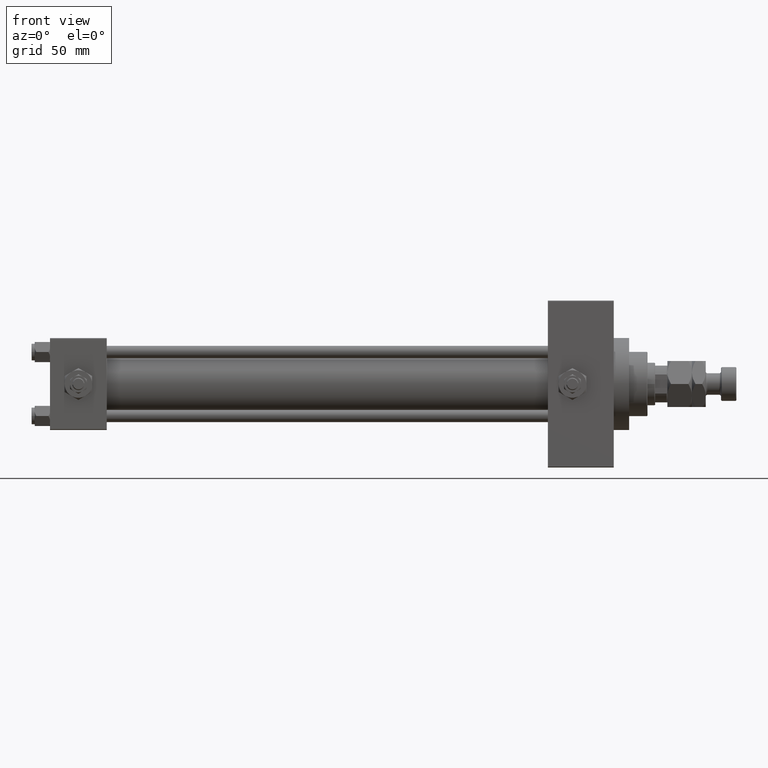
[diagram: clean part render]
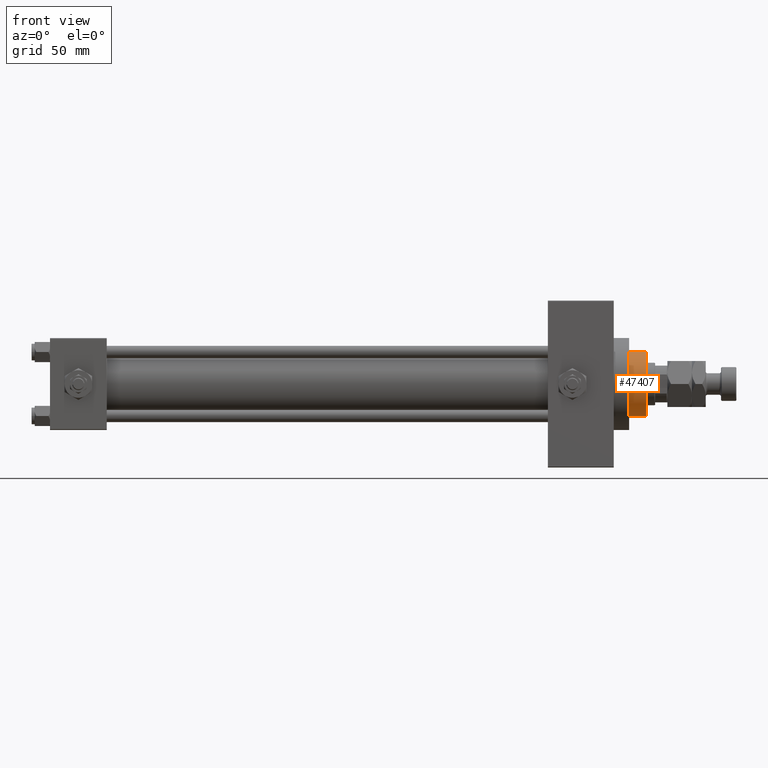
[diagram: same view with one face highlighted and labeled with its STEP entity id]
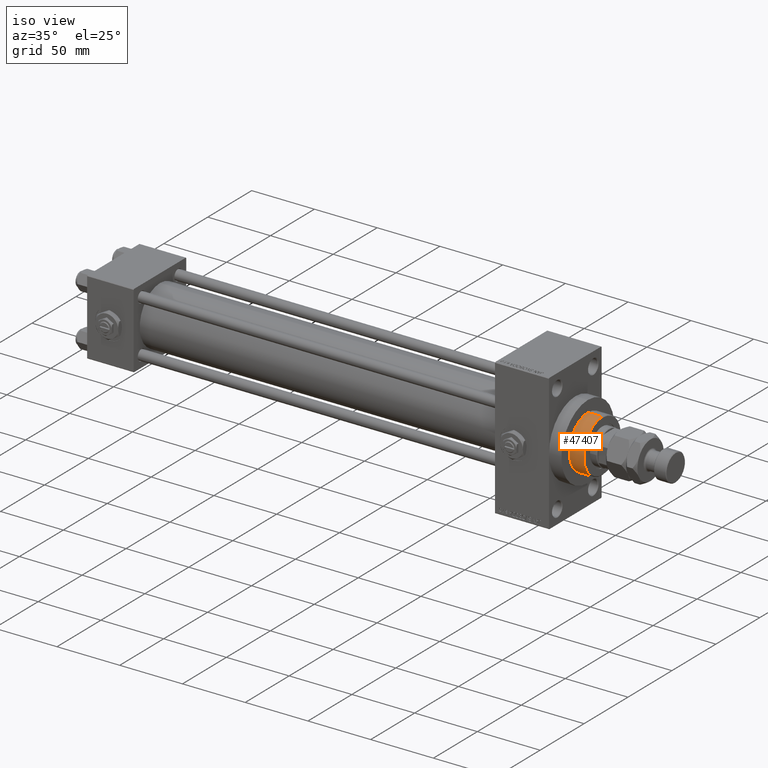
[diagram: same view with one face highlighted and labeled with its STEP entity id]
A machine part, front view. The second image highlights one B-rep face of the part: STEP entity #47407.
A second angle (iso view) of the same face is appended — the face is thin or edge-on in the first view.
In plain terms, the highlighted cylindrical surface (edge-blend (fillet) strip) has radius 21 mm, axis along (-1, 0, 0).
Its self-contained STEP definition (entity closure, byte-faithful):
#2555 = EDGE_LOOP ( 'NONE', ( #30247, #31320, #38902, #20871 ) ) ;
#3275 = VERTEX_POINT ( 'NONE', #41151 ) ;
#4471 = DIRECTION ( 'NONE',  ( 0.000000000000000000, 0.000000000000000000, -1.000000000000000000 ) ) ;
#6302 = DIRECTION ( 'NONE',  ( -0.000000000000000000, -0.000000000000000000, -1.000000000000000000 ) ) ;
#6613 = CARTESIAN_POINT ( 'NONE',  ( 21.00000000000000000, 2.571758278209441661E-15, 54.75999999999999091 ) ) ;
#7779 = EDGE_CURVE ( 'NONE', #26715, #47212, #12878, .T. ) ;
#10183 = CARTESIAN_POINT ( 'NONE',  ( 0.000000000000000000, 0.000000000000000000, 55.26000000000000512 ) ) ;
#11707 = CIRCLE ( 'NONE', #18293, 21.00000000000000000 ) ;
#12878 = CIRCLE ( 'NONE', #41683, 21.00000000000000000 ) ;
#13962 = EDGE_CURVE ( 'NONE', #47212, #21060, #27170, .T. ) ;
#14052 = CYLINDRICAL_SURFACE ( 'NONE', #18770, 21.00000000000000000 ) ;
#15808 = CARTESIAN_POINT ( 'NONE',  ( -21.00000000000000000, 0.000000000000000000, 54.75999999999999091 ) ) ;
#18293 = AXIS2_PLACEMENT_3D ( 'NONE', #39295, #24053, #43640 ) ;
#18770 = AXIS2_PLACEMENT_3D ( 'NONE', #10183, #6302, #22046 ) ;
#19375 = DIRECTION ( 'NONE',  ( -0.000000000000000000, -0.000000000000000000, -1.000000000000000000 ) ) ;
#20337 = VECTOR ( 'NONE', #34924, 1000.000000000000000 ) ;
#20871 = ORIENTED_EDGE ( 'NONE', *, *, #50006, .F. ) ;
#21060 = VERTEX_POINT ( 'NONE', #39205 ) ;
#22046 = DIRECTION ( 'NONE',  ( -1.000000000000000000, 0.000000000000000000, 0.000000000000000000 ) ) ;
#24053 = DIRECTION ( 'NONE',  ( 0.000000000000000000, 0.000000000000000000, 1.000000000000000000 ) ) ;
#24574 = CARTESIAN_POINT ( 'NONE',  ( 0.000000000000000000, 0.000000000000000000, 54.75999999999999091 ) ) ;
#26715 = VERTEX_POINT ( 'NONE', #15808 ) ;
#27170 = LINE ( 'NONE', #38776, #20337 ) ;
#27676 = EDGE_CURVE ( 'NONE', #21060, #3275, #11707, .T. ) ;
#30040 = FACE_OUTER_BOUND ( 'NONE', #2555, .T. ) ;
#30247 = ORIENTED_EDGE ( 'NONE', *, *, #7779, .T. ) ;
#31320 = ORIENTED_EDGE ( 'NONE', *, *, #13962, .T. ) ;
#34924 = DIRECTION ( 'NONE',  ( -0.000000000000000000, -0.000000000000000000, -1.000000000000000000 ) ) ;
#37971 = LINE ( 'NONE', #46168, #43557 ) ;
#38776 = CARTESIAN_POINT ( 'NONE',  ( 21.00000000000000000, 2.571758278209441661E-15, 55.26000000000000512 ) ) ;
#38902 = ORIENTED_EDGE ( 'NONE', *, *, #27676, .T. ) ;
#39205 = CARTESIAN_POINT ( 'NONE',  ( 21.00000000000000000, 2.571758278209441661E-15, 43.25999999999999801 ) ) ;
#39295 = CARTESIAN_POINT ( 'NONE',  ( 0.000000000000000000, 0.000000000000000000, 43.25999999999999801 ) ) ;
#41151 = CARTESIAN_POINT ( 'NONE',  ( -21.00000000000000000, 0.000000000000000000, 43.25999999999999801 ) ) ;
#41683 = AXIS2_PLACEMENT_3D ( 'NONE', #24574, #4471, #43406 ) ;
#43406 = DIRECTION ( 'NONE',  ( 1.000000000000000000, 0.000000000000000000, 0.000000000000000000 ) ) ;
#43557 = VECTOR ( 'NONE', #19375, 1000.000000000000000 ) ;
#43640 = DIRECTION ( 'NONE',  ( 1.000000000000000000, 0.000000000000000000, 0.000000000000000000 ) ) ;
#46168 = CARTESIAN_POINT ( 'NONE',  ( -21.00000000000000000, 0.000000000000000000, 55.26000000000000512 ) ) ;
#47212 = VERTEX_POINT ( 'NONE', #6613 ) ;
#47407 = ADVANCED_FACE ( 'NONE', ( #30040 ), #14052, .T. ) ;
#50006 = EDGE_CURVE ( 'NONE', #26715, #3275, #37971, .T. ) ;